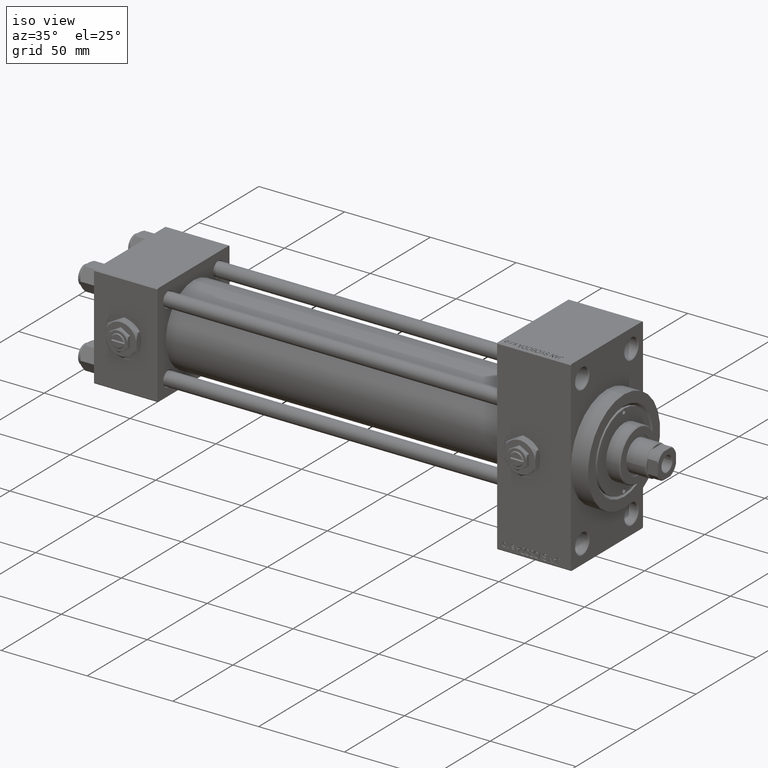
[diagram: clean part render]
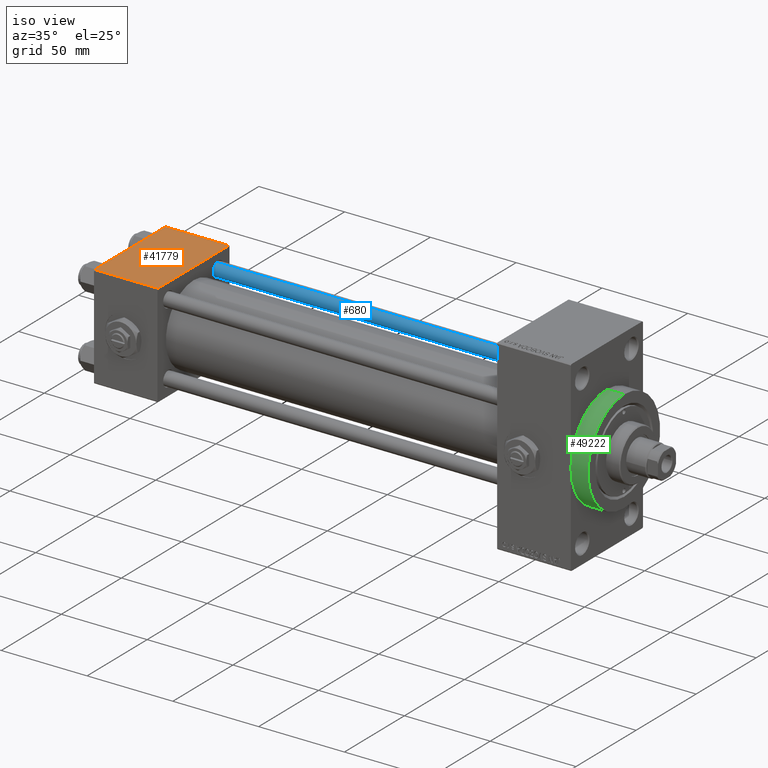
[diagram: same view with three faces highlighted in distinct colors, each labeled with its STEP entity id]
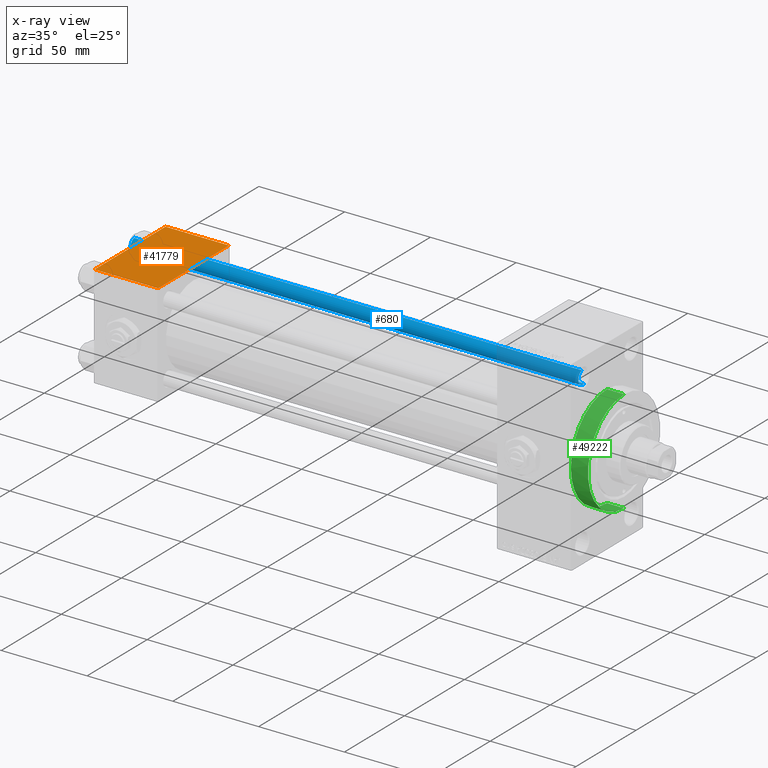
[diagram: x-ray of the same camera — body ghosted, the three highlighted faces saturated]
A machine part, iso view with three faces highlighted in distinct colors.
The next image is the same camera in x-ray (body ghosted, the three faces saturated) — at least one of them is partly hidden behind the body in this view.
Their STEP definitions:

[orange] entity #41779 — the highlighted planar face has unit normal (0, 0, -1).
#2855 = CARTESIAN_POINT ( 'NONE',  ( 0.000000000000000000, 29.49999999999999289, 30.00000000000000000 ) ) ;
#3962 = CARTESIAN_POINT ( 'NONE',  ( 37.00000000000000000, -29.50000000000000000, 29.99999999999999289 ) ) ;
#4432 = FACE_OUTER_BOUND ( 'NONE', #47785, .T. ) ;
#4669 = LINE ( 'NONE', #8172, #14018 ) ;
#6311 = EDGE_CURVE ( 'NONE', #35064, #28248, #4669, .T. ) ;
#8001 = EDGE_CURVE ( 'NONE', #47349, #43900, #29146, .T. ) ;
#8172 = CARTESIAN_POINT ( 'NONE',  ( 37.00000000000000000, 29.99999999999999289, 30.00000000000000000 ) ) ;
#9276 = ORIENTED_EDGE ( 'NONE', *, *, #44199, .T. ) ;
#10591 = LINE ( 'NONE', #2855, #29725 ) ;
#10645 = VECTOR ( 'NONE', #34495, 1000.000000000000000 ) ;
#13002 = AXIS2_PLACEMENT_3D ( 'NONE', #42236, #38482, #27454 ) ;
#13862 = DIRECTION ( 'NONE',  ( -1.000000000000000000, 0.000000000000000000, 0.000000000000000000 ) ) ;
#14018 = VECTOR ( 'NONE', #23927, 1000.000000000000000 ) ;
#22780 = ORIENTED_EDGE ( 'NONE', *, *, #39833, .T. ) ;
#23788 = CARTESIAN_POINT ( 'NONE',  ( 37.00000000000000000, 29.49999999999999289, 30.00000000000000000 ) ) ;
#23927 = DIRECTION ( 'NONE',  ( 0.000000000000000000, -1.000000000000000000, -1.156482317317871725E-16 ) ) ;
#24335 = CARTESIAN_POINT ( 'NONE',  ( 0.000000000000000000, 29.49999999999999289, 30.00000000000000000 ) ) ;
#26953 = PLANE ( 'NONE',  #13002 ) ;
#27111 = CARTESIAN_POINT ( 'NONE',  ( 37.00000000000000000, -29.49999999999998579, 29.99999999999999289 ) ) ;
#27454 = DIRECTION ( 'NONE',  ( 0.000000000000000000, 1.000000000000000000, 1.156482317317871725E-16 ) ) ;
#28248 = VERTEX_POINT ( 'NONE', #27111 ) ;
#28464 = VECTOR ( 'NONE', #41393, 1000.000000000000000 ) ;
#29146 = LINE ( 'NONE', #48909, #28464 ) ;
#29725 = VECTOR ( 'NONE', #13862, 1000.000000000000000 ) ;
#34495 = DIRECTION ( 'NONE',  ( 1.000000000000000000, 0.000000000000000000, 0.000000000000000000 ) ) ;
#34513 = ORIENTED_EDGE ( 'NONE', *, *, #6311, .F. ) ;
#35064 = VERTEX_POINT ( 'NONE', #23788 ) ;
#38253 = LINE ( 'NONE', #3962, #10645 ) ;
#38482 = DIRECTION ( 'NONE',  ( 0.000000000000000000, 1.156482317317871725E-16, -1.000000000000000000 ) ) ;
#39833 = EDGE_CURVE ( 'NONE', #35064, #47349, #10591, .T. ) ;
#40843 = ORIENTED_EDGE ( 'NONE', *, *, #8001, .T. ) ;
#41393 = DIRECTION ( 'NONE',  ( 0.000000000000000000, -1.000000000000000000, -1.156482317317871725E-16 ) ) ;
#41779 = ADVANCED_FACE ( 'NONE', ( #4432 ), #26953, .F. ) ;
#42236 = CARTESIAN_POINT ( 'NONE',  ( 37.00000000000000000, 29.99999999999999289, 30.00000000000000000 ) ) ;
#43900 = VERTEX_POINT ( 'NONE', #47309 ) ;
#44199 = EDGE_CURVE ( 'NONE', #43900, #28248, #38253, .T. ) ;
#47309 = CARTESIAN_POINT ( 'NONE',  ( 0.000000000000000000, -29.49999999999998579, 29.99999999999999289 ) ) ;
#47349 = VERTEX_POINT ( 'NONE', #24335 ) ;
#47785 = EDGE_LOOP ( 'NONE', ( #40843, #9276, #34513, #22780 ) ) ;
#48909 = CARTESIAN_POINT ( 'NONE',  ( 0.000000000000000000, 29.99999999999999289, 30.00000000000000000 ) ) ;

[blue] entity #680 — the highlighted cylindrical surface (edge-blend (fillet) strip) has radius 4 mm, axis along (-1, -0, 0).
#680 = ADVANCED_FACE ( 'NONE', ( #24571 ), #25311, .T. ) ;
#2004 = DIRECTION ( 'NONE',  ( 0.000000000000000000, 0.000000000000000000, -1.000000000000000000 ) ) ;
#5085 = VECTOR ( 'NONE', #31053, 1000.000000000000000 ) ;
#6829 = ORIENTED_EDGE ( 'NONE', *, *, #44164, .T. ) ;
#7661 = CARTESIAN_POINT ( 'NONE',  ( 4.000000000000000000, 4.898587196589412829E-16, 0.5000000000000559552 ) ) ;
#7957 = CARTESIAN_POINT ( 'NONE',  ( -4.000000000000000000, 0.000000000000000000, 262.0000000000000000 ) ) ;
#11458 = DIRECTION ( 'NONE',  ( -0.000000000000000000, -0.000000000000000000, -1.000000000000000000 ) ) ;
#12078 = CARTESIAN_POINT ( 'NONE',  ( 4.000000000000000000, 4.898587196589412829E-16, 261.5000000000000000 ) ) ;
#12802 = VERTEX_POINT ( 'NONE', #7661 ) ;
#13289 = CARTESIAN_POINT ( 'NONE',  ( 0.000000000000000000, 0.000000000000000000, 262.0000000000000000 ) ) ;
#14191 = DIRECTION ( 'NONE',  ( 1.000000000000000000, 0.000000000000000000, 0.000000000000000000 ) ) ;
#15388 = ORIENTED_EDGE ( 'NONE', *, *, #43795, .F. ) ;
#17399 = VERTEX_POINT ( 'NONE', #22850 ) ;
#17446 = CARTESIAN_POINT ( 'NONE',  ( 0.000000000000000000, 0.000000000000000000, 0.5000000000000559552 ) ) ;
#18306 = CIRCLE ( 'NONE', #25498, 4.000000000000000000 ) ;
#20530 = ORIENTED_EDGE ( 'NONE', *, *, #48847, .T. ) ;
#22850 = CARTESIAN_POINT ( 'NONE',  ( -4.000000000000000000, 0.000000000000000000, 261.5000000000000000 ) ) ;
#23035 = LINE ( 'NONE', #38319, #5085 ) ;
#24571 = FACE_OUTER_BOUND ( 'NONE', #48596, .T. ) ;
#25311 = CYLINDRICAL_SURFACE ( 'NONE', #27394, 4.000000000000000000 ) ;
#25498 = AXIS2_PLACEMENT_3D ( 'NONE', #17446, #44503, #14191 ) ;
#25920 = AXIS2_PLACEMENT_3D ( 'NONE', #40303, #2004, #47317 ) ;
#27394 = AXIS2_PLACEMENT_3D ( 'NONE', #13289, #40588, #44101 ) ;
#29930 = CIRCLE ( 'NONE', #25920, 4.000000000000000000 ) ;
#30324 = VERTEX_POINT ( 'NONE', #46522 ) ;
#30532 = EDGE_CURVE ( 'NONE', #30324, #12802, #18306, .T. ) ;
#30750 = LINE ( 'NONE', #7957, #38640 ) ;
#30817 = ORIENTED_EDGE ( 'NONE', *, *, #30532, .T. ) ;
#31053 = DIRECTION ( 'NONE',  ( -0.000000000000000000, -0.000000000000000000, -1.000000000000000000 ) ) ;
#38319 = CARTESIAN_POINT ( 'NONE',  ( 4.000000000000000000, 4.898587196589412829E-16, 262.0000000000000000 ) ) ;
#38640 = VECTOR ( 'NONE', #11458, 1000.000000000000000 ) ;
#40303 = CARTESIAN_POINT ( 'NONE',  ( 0.000000000000000000, 0.000000000000000000, 261.5000000000000000 ) ) ;
#40588 = DIRECTION ( 'NONE',  ( -0.000000000000000000, -0.000000000000000000, -1.000000000000000000 ) ) ;
#43795 = EDGE_CURVE ( 'NONE', #48318, #12802, #23035, .T. ) ;
#44101 = DIRECTION ( 'NONE',  ( -1.000000000000000000, 0.000000000000000000, 0.000000000000000000 ) ) ;
#44164 = EDGE_CURVE ( 'NONE', #17399, #30324, #30750, .T. ) ;
#44503 = DIRECTION ( 'NONE',  ( -0.000000000000000000, -0.000000000000000000, 1.000000000000000000 ) ) ;
#46522 = CARTESIAN_POINT ( 'NONE',  ( -4.000000000000000000, 0.000000000000000000, 0.5000000000000559552 ) ) ;
#47317 = DIRECTION ( 'NONE',  ( 1.000000000000000000, 0.000000000000000000, 0.000000000000000000 ) ) ;
#48318 = VERTEX_POINT ( 'NONE', #12078 ) ;
#48596 = EDGE_LOOP ( 'NONE', ( #15388, #20530, #6829, #30817 ) ) ;
#48847 = EDGE_CURVE ( 'NONE', #48318, #17399, #29930, .T. ) ;

[green] entity #49222 — the highlighted cylindrical surface (partial cylindrical patch) has radius 30 mm, axis along (-1, -0, -0).
#45 = EDGE_CURVE ( 'NONE', #18820, #25988, #22461, .T. ) ;
#780 = CARTESIAN_POINT ( 'NONE',  ( 278.0000000000000000, 0.000000000000000000, 0.000000000000000000 ) ) ;
#1118 = ORIENTED_EDGE ( 'NONE', *, *, #13160, .T. ) ;
#2672 = VERTEX_POINT ( 'NONE', #15941 ) ;
#3234 = DIRECTION ( 'NONE',  ( 0.000000000000000000, 0.000000000000000000, -1.000000000000000000 ) ) ;
#4912 = CIRCLE ( 'NONE', #44088, 30.00000000000000000 ) ;
#4925 = EDGE_CURVE ( 'NONE', #2672, #28092, #9263, .T. ) ;
#4958 = DIRECTION ( 'NONE',  ( 0.000000000000000000, 0.000000000000000000, 1.000000000000000000 ) ) ;
#7153 = ORIENTED_EDGE ( 'NONE', *, *, #45, .T. ) ;
#7176 = CARTESIAN_POINT ( 'NONE',  ( 278.0000000000000000, 0.000000000000000000, 30.00000000000000000 ) ) ;
#9263 = LINE ( 'NONE', #17008, #18725 ) ;
#9324 = AXIS2_PLACEMENT_3D ( 'NONE', #780, #16271, #23794 ) ;
#10897 = CIRCLE ( 'NONE', #9324, 30.00000000000000000 ) ;
#11460 = DIRECTION ( 'NONE',  ( 1.000000000000000000, 0.000000000000000000, 0.000000000000000000 ) ) ;
#12885 = CARTESIAN_POINT ( 'NONE',  ( 278.0000000000000000, 3.673940397442059178E-15, -30.00000000000000000 ) ) ;
#13160 = EDGE_CURVE ( 'NONE', #25988, #22756, #10897, .T. ) ;
#15066 = CARTESIAN_POINT ( 'NONE',  ( 278.0000000000000000, -30.00000000000000000, 0.000000000000000000 ) ) ;
#15941 = CARTESIAN_POINT ( 'NONE',  ( 288.0000000000000568, 3.673940397442059178E-15, -30.00000000000000000 ) ) ;
#16271 = DIRECTION ( 'NONE',  ( 1.000000000000000000, 0.000000000000000000, 0.000000000000000000 ) ) ;
#16941 = DIRECTION ( 'NONE',  ( -1.000000000000000000, -0.000000000000000000, -0.000000000000000000 ) ) ;
#17008 = CARTESIAN_POINT ( 'NONE',  ( 288.0000000000000568, 3.673940397442059178E-15, -30.00000000000000000 ) ) ;
#18725 = VECTOR ( 'NONE', #46585, 1000.000000000000000 ) ;
#18820 = VERTEX_POINT ( 'NONE', #19985 ) ;
#19985 = CARTESIAN_POINT ( 'NONE',  ( 288.0000000000000568, 0.000000000000000000, 30.00000000000000000 ) ) ;
#21522 = AXIS2_PLACEMENT_3D ( 'NONE', #30260, #11460, #3234 ) ;
#22461 = LINE ( 'NONE', #44770, #31397 ) ;
#22756 = VERTEX_POINT ( 'NONE', #15066 ) ;
#23539 = ORIENTED_EDGE ( 'NONE', *, *, #4925, .F. ) ;
#23794 = DIRECTION ( 'NONE',  ( 0.000000000000000000, 0.000000000000000000, -1.000000000000000000 ) ) ;
#24384 = CARTESIAN_POINT ( 'NONE',  ( 278.0000000000000000, 0.000000000000000000, 0.000000000000000000 ) ) ;
#25988 = VERTEX_POINT ( 'NONE', #7176 ) ;
#28092 = VERTEX_POINT ( 'NONE', #12885 ) ;
#28234 = FACE_OUTER_BOUND ( 'NONE', #30713, .T. ) ;
#30260 = CARTESIAN_POINT ( 'NONE',  ( 288.0000000000000568, 0.000000000000000000, 0.000000000000000000 ) ) ;
#30713 = EDGE_LOOP ( 'NONE', ( #23539, #47133, #7153, #1118, #45381 ) ) ;
#31397 = VECTOR ( 'NONE', #45502, 1000.000000000000000 ) ;
#34322 = EDGE_CURVE ( 'NONE', #18820, #2672, #49499, .T. ) ;
#38968 = EDGE_CURVE ( 'NONE', #22756, #28092, #4912, .T. ) ;
#39497 = CARTESIAN_POINT ( 'NONE',  ( 288.0000000000000568, 0.000000000000000000, 0.000000000000000000 ) ) ;
#39906 = DIRECTION ( 'NONE',  ( 1.000000000000000000, 0.000000000000000000, 0.000000000000000000 ) ) ;
#42750 = AXIS2_PLACEMENT_3D ( 'NONE', #39497, #16941, #4958 ) ;
#43920 = DIRECTION ( 'NONE',  ( 0.000000000000000000, 0.000000000000000000, -1.000000000000000000 ) ) ;
#44088 = AXIS2_PLACEMENT_3D ( 'NONE', #24384, #39906, #43920 ) ;
#44680 = CYLINDRICAL_SURFACE ( 'NONE', #42750, 30.00000000000000000 ) ;
#44770 = CARTESIAN_POINT ( 'NONE',  ( 288.0000000000000568, 0.000000000000000000, 30.00000000000000000 ) ) ;
#45381 = ORIENTED_EDGE ( 'NONE', *, *, #38968, .T. ) ;
#45502 = DIRECTION ( 'NONE',  ( -1.000000000000000000, -0.000000000000000000, -0.000000000000000000 ) ) ;
#46585 = DIRECTION ( 'NONE',  ( -1.000000000000000000, -0.000000000000000000, -0.000000000000000000 ) ) ;
#47133 = ORIENTED_EDGE ( 'NONE', *, *, #34322, .F. ) ;
#49222 = ADVANCED_FACE ( 'NONE', ( #28234 ), #44680, .T. ) ;
#49499 = CIRCLE ( 'NONE', #21522, 30.00000000000000000 ) ;